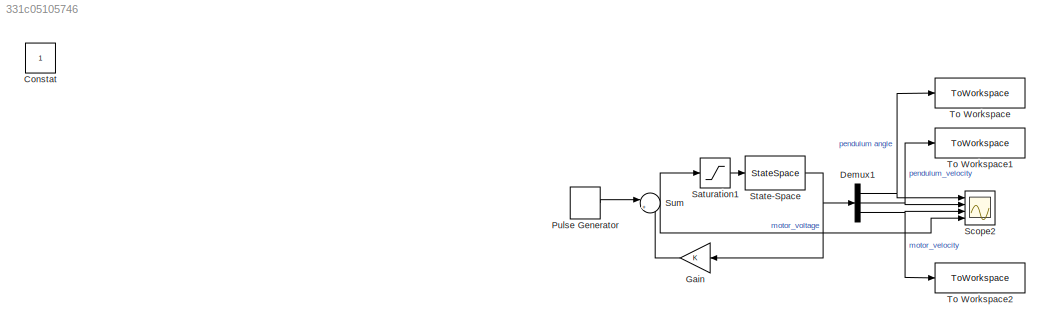
MODEL slx_331c05105746
KIND model
CONFIG AbsTol = auto
CONFIG EnableMultiTasking = off
CONFIG FixedStep = auto
CONFIG MaxStep = auto
CONFIG MinStep = auto
CONFIG RelTol = 1e-3
CONFIG SampleTimeConstraint = Unconstrained
CONFIG SolverName = ode15s
CONFIG StartTime = 0.0
CONFIG StopTime = 10
BLOCK [Constant] Constat
  IOType = siggen
BLOCK [Demux] Demux1
  Outputs = 3
  Ports = [1, 3]
BLOCK [Gain] Gain
  Gain = K
  Multiplication = Matrix(K*u)
BLOCK [DiscretePulseGenerator] Pulse Generator
  Period = 2.5
  Ports = [0, 1]
  PulseType = Time based
  PulseWidth = 5
BLOCK [Saturate] Saturation1
  LowerLimit = -Umax
  UpperLimit = Umax
BLOCK [Scope] Scope2
  Floating = off
  NumInputPorts = 4
  Ports = [4]
  ScopeSpecificationString = Simulink.scopes.TimeScopeBlockCfg('CurrentConfiguration', extmgr.ConfigurationSet(extmgr.Configuration('Core','General UI',true),extmgr.Configuration('Core','Source UI',true),extmgr.Configuration('Sources','WiredSimulink',true,'DataLoggingVariableName','ScopeData1'),extmgr.Configuration('Visuals','Time Domain',true,'SerializedDisplays',{struct('MinYLimReal','-0.01138','MaxYLimReal','0.00244','YLab...<+2799ch>
BLOCK [StateSpace] State-Space
  A = A
  B = B
  C = C
  D = D
  InitialCondition = [-.01 0 0]
  Ports = [1, 1]
BLOCK [Sum] Sum
  Inputs = |+-
  Ports = [2, 1]
BLOCK [ToWorkspace] To Workspace
  FixptAsFi = on
  MaxDataPoints = inf
  Ports = [1]
  SampleTime = -1
  VariableName = pa
BLOCK [ToWorkspace] To Workspace1
  FixptAsFi = on
  MaxDataPoints = inf
  Ports = [1]
  SampleTime = -1
  VariableName = pv
BLOCK [ToWorkspace] To Workspace2
  FixptAsFi = on
  MaxDataPoints = inf
  Ports = [1]
  SampleTime = -1
  VariableName = mv
NET Demux1:1 -> Scope2:1, To Workspace:1
NET Demux1:2 -> Scope2:2, To Workspace1:1
NET Demux1:3 -> Scope2:3, To Workspace2:1
LINE Gain:1 -> Sum:2
LINE Pulse Generator:1 -> Sum:1
LINE Saturation1:1 -> State-Space:1
NET State-Space:1 -> Demux1:1, Gain:1
NET Sum:1 -> Saturation1:1, Scope2:4
note: NET lines group one-source signal fan-out (src -> all destinations, sorted); 1:1 wires keep LINE
